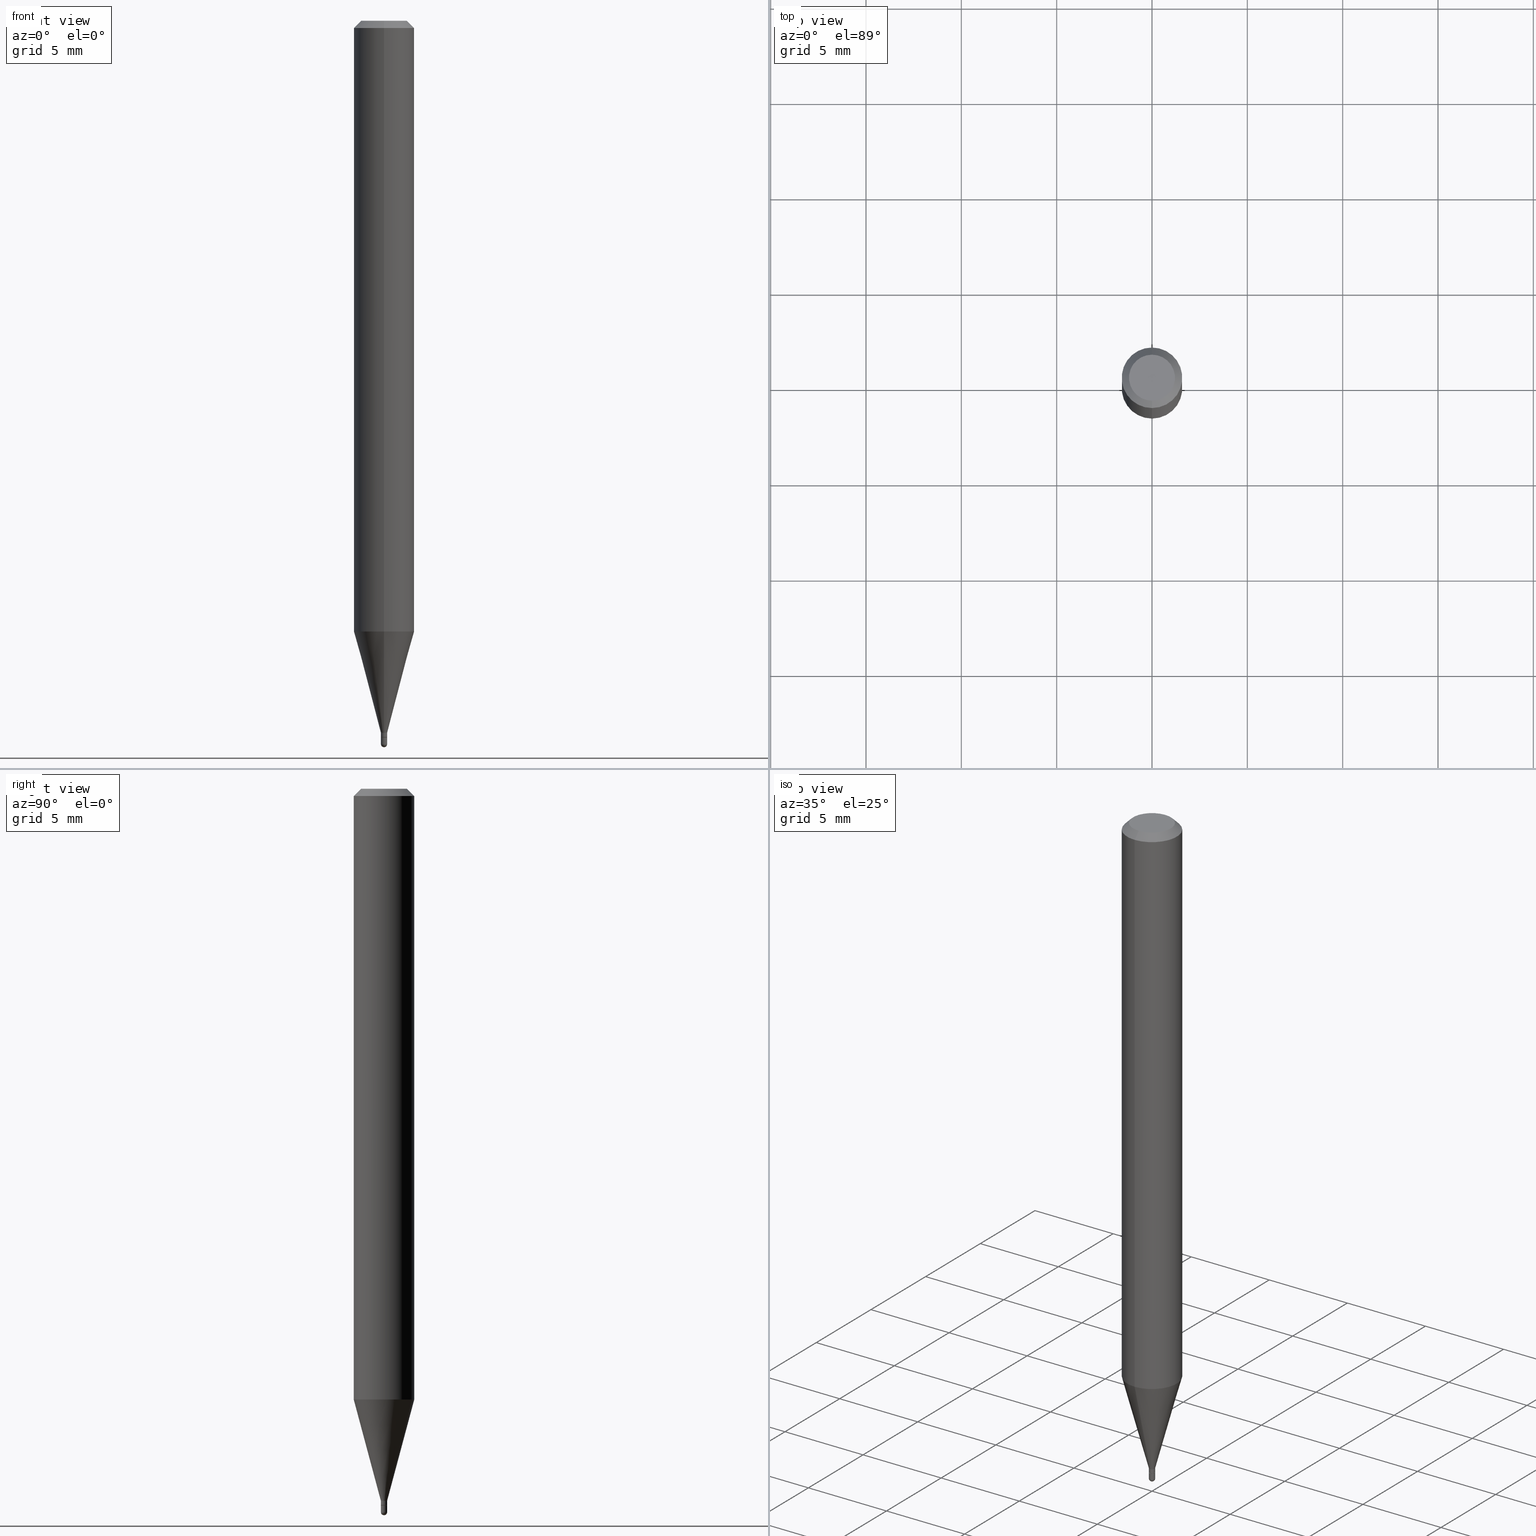
[diagram: canonical four-view strip — front | top / right | iso, engineering-drawing reading convention]
A machine part, canonical four-view strip (front | top / right | iso — engineering-drawing reading convention). The complete STEP part file that produces these views, byte-faithful:
ISO-10303-21;
HEADER;
FILE_DESCRIPTION (( 'STEP AP203' ),
    '1' );
FILE_NAME ('03074.STEP',
    '2024-03-08T18:06:24',
    ( '' ),
    ( '' ),
    'SwSTEP 2.0',
    'SolidWorks 2023',
    '' );
FILE_SCHEMA (( 'CONFIG_CONTROL_DESIGN' ));
ENDSEC;

DATA;
#1 = AXIS2_PLACEMENT_3D ( 'NONE', #377, #23, #67 ) ;
#2 = PRODUCT_DEFINITION_FORMATION_WITH_SPECIFIED_SOURCE ( 'ANY', '', #460, .NOT_KNOWN. ) ;
#3 = SECURITY_CLASSIFICATION_LEVEL ( 'unclassified' ) ;
#4 = CARTESIAN_POINT ( 'NONE',  ( -4.364351673553916201E-16, -0.06250000000000000000, 2.182182426191505568E-16 ) ) ;
#5 = CARTESIAN_POINT ( 'NONE',  ( 0.000000000000000000, 0.000000000000000000, 0.000000000000000000 ) ) ;
#6 = CARTESIAN_POINT ( 'NONE',  ( 3.652307662037501839E-29, -5.214527379562237841E-15, -1.493500000000000050 ) ) ;
#7 = EDGE_CURVE ( 'NONE', #459, #26, #87, .T. ) ;
#8 = FACE_OUTER_BOUND ( 'NONE', #211, .T. ) ;
#9 = EDGE_LOOP ( 'NONE', ( #18, #15, #296, #323, #359 ) ) ;
#10 = AXIS2_PLACEMENT_3D ( 'NONE', #219, #371, #468 ) ;
#11 = ORIENTED_EDGE ( 'NONE', *, *, #286, .T. ) ;
#12 = EDGE_LOOP ( 'NONE', ( #454, #379 ) ) ;
#13 = ORIENTED_EDGE ( 'NONE', *, *, #510, .F. ) ;
#14 = AXIS2_PLACEMENT_3D ( 'NONE', #266, #193, #142 ) ;
#15 = ORIENTED_EDGE ( 'NONE', *, *, #68, .T. ) ;
#16 = CARTESIAN_POINT ( 'NONE',  ( 3.652307662037501839E-29, -5.214527379562237841E-15, -1.493500000000000050 ) ) ;
#17 = DIRECTION ( 'NONE',  ( -6.982962677686265922E-15, -1.000000000000000000, 3.483106191921935554E-15 ) ) ;
#18 = ORIENTED_EDGE ( 'NONE', *, *, #122, .F. ) ;
#19 = ADVANCED_FACE ( 'NONE', ( #486 ), #70, .F. ) ;
#20 = CARTESIAN_POINT ( 'NONE',  ( 3.667369422145754585E-29, -5.238416038893887198E-15, -1.499999999999999778 ) ) ;
#21 = ORIENTED_EDGE ( 'NONE', *, *, #311, .T. ) ;
#22 = ORIENTED_EDGE ( 'NONE', *, *, #402, .T. ) ;
#23 = DIRECTION ( 'NONE',  ( -2.445461444003408996E-29, 3.491491881906408909E-15, 1.000000000000000000 ) ) ;
#24 = FACE_OUTER_BOUND ( 'NONE', #328, .T. ) ;
#25 = CIRCLE ( 'NONE', #105, 0.06250000000000000000 ) ;
#26 = VERTEX_POINT ( 'NONE', #230 ) ;
#27 = DIRECTION ( 'NONE',  ( 2.438088387897960049E-29, -3.491481338843145188E-15, -1.000000000000000000 ) ) ;
#28 = CARTESIAN_POINT ( 'NONE',  ( 2.451372438372677661E-16, 0.006499999999994789460, -1.469999999999999973 ) ) ;
#29 = CARTESIAN_POINT ( 'NONE',  ( 3.619293833154002365E-29, -5.167392381487854879E-15, -1.479999999999999982 ) ) ;
#30 = DIRECTION ( 'NONE',  ( 1.000000000000000000, -6.982962677686258822E-15, 0.000000000000000000 ) ) ;
#31 = FACE_OUTER_BOUND ( 'NONE', #366, .T. ) ;
#32 = APPROVAL_ROLE ( '' ) ;
#33 = DIRECTION ( 'NONE',  ( -6.982962677686265133E-15, -1.000000000000000000, 0.000000000000000000 ) ) ;
#34 = EDGE_CURVE ( 'NONE', #26, #459, #238, .T. ) ;
#35 = VECTOR ( 'NONE', #52, 39.37007874015748143 ) ;
#36 = COORDINATED_UNIVERSAL_TIME_OFFSET ( 5, 0, .BEHIND. ) ;
#37 = CARTESIAN_POINT ( 'NONE',  ( 0.000000000000000000, 0.000000000000000000, 0.000000000000000000 ) ) ;
#38 = LINE ( 'NONE', #110, #136 ) ;
#39 = COORDINATED_UNIVERSAL_TIME_OFFSET ( 5, 0, .BEHIND. ) ;
#40 = CARTESIAN_POINT ( 'NONE',  ( 3.651751803949534592E-29, -5.215323399981684118E-15, -1.493500000000000050 ) ) ;
#41 = AXIS2_PLACEMENT_3D ( 'NONE', #319, #444, #121 ) ;
#42 = CIRCLE ( 'NONE', #274, 0.006499999999999890414 ) ;
#43 = APPROVAL_DATE_TIME ( #511, #392 ) ;
#44 = DIRECTION ( 'NONE',  ( -2.445461444003408996E-29, 3.491491881906408909E-15, 1.000000000000000000 ) ) ;
#45 = ADVANCED_FACE ( 'NONE', ( #464 ), #227, .T. ) ;
#46 = CARTESIAN_POINT ( 'NONE',  ( 3.594828322685010882E-29, -5.132493066402420493E-15, -1.469999999999999973 ) ) ;
#47 = ORIENTED_EDGE ( 'NONE', *, *, #250, .T. ) ;
#48 = AXIS2_PLACEMENT_3D ( 'NONE', #190, #298, #30 ) ;
#49 = PRODUCT_DEFINITION ( 'UNKNOWN', '', #2, #497 ) ;
#50 = EDGE_LOOP ( 'NONE', ( #253, #188, #365, #55 ) ) ;
#51 = ORIENTED_EDGE ( 'NONE', *, *, #400, .F. ) ;
#52 = DIRECTION ( 'NONE',  ( -2.445461444003409276E-29, 3.491491881906408909E-15, 1.000000000000000000 ) ) ;
#53 = CIRCLE ( 'NONE', #478, 0.006499999999999998834 ) ;
#54 = VECTOR ( 'NONE', #95, 39.37007874015748143 ) ;
#55 = ORIENTED_EDGE ( 'NONE', *, *, #80, .F. ) ;
#56 = CARTESIAN_POINT ( 'NONE',  ( -5.856614666460352814E-45, 8.361744002769819647E-31, 2.394891434833919131E-16 ) ) ;
#57 = CARTESIAN_POINT ( 'NONE',  ( 0.006499999999999998834, -4.538925740496073214E-17, 3.169514904267357635E-31 ) ) ;
#58 = VERTEX_POINT ( 'NONE', #183 ) ;
#59 = CC_DESIGN_PERSON_AND_ORGANIZATION_ASSIGNMENT ( #245, #270, ( #218 ) ) ;
#60 = DIRECTION ( 'NONE',  ( -6.982962677686266711E-15, -1.000000000000000000, 3.491491881906409698E-15 ) ) ;
#61 = CARTESIAN_POINT ( 'NONE',  ( 3.083739486694608884E-29, -4.402789260943038280E-15, -1.261005154776143167 ) ) ;
#62 = ORIENTED_EDGE ( 'NONE', *, *, #502, .F. ) ;
#63 = CARTESIAN_POINT ( 'NONE',  ( 3.652307662037501839E-29, -5.214527379562237841E-15, -1.493500000000000050 ) ) ;
#64 = DIRECTION ( 'NONE',  ( -6.982962677686265922E-15, -1.000000000000000000, 4.370956789862821150E-15 ) ) ;
#65 = CONICAL_SURFACE ( 'NONE', #207, 0.005999999999999998390, 0.7853981633974739252 ) ;
#66 =( NAMED_UNIT ( * ) SI_UNIT ( $, .STERADIAN. ) SOLID_ANGLE_UNIT ( ) );
#67 = DIRECTION ( 'NONE',  ( -6.982962677686265922E-15, -1.000000000000000000, 3.491491881906408909E-15 ) ) ;
#68 = EDGE_CURVE ( 'NONE', #430, #491, #93, .T. ) ;
#69 = CARTESIAN_POINT ( 'NONE',  ( -4.538925740492423500E-17, -0.006500000000005055553, -1.469999999999999973 ) ) ;
#70 = PLANE ( 'NONE',  #294 ) ;
#71 = APPROVAL_ROLE ( '' ) ;
#72 = ADVANCED_FACE ( 'NONE', ( #340 ), #333, .T. ) ;
#73 = VECTOR ( 'NONE', #85, 39.37007874015748143 ) ;
#74 = COORDINATED_UNIVERSAL_TIME_OFFSET ( 5, 0, .BEHIND. ) ;
#75 = DIRECTION ( 'NONE',  ( -4.937700262164674260E-15, -0.7071067811865632269, 0.7071067811865319186 ) ) ;
#76 = MECHANICAL_CONTEXT ( 'NONE', #295, 'mechanical' ) ;
#77 = LINE ( 'NONE', #477, #119 ) ;
#78 = APPROVAL_DATE_TIME ( #474, #123 ) ;
#79 = DIRECTION ( 'NONE',  ( -2.445461444003409276E-29, 3.491491881906408909E-15, 1.000000000000000000 ) ) ;
#80 = EDGE_CURVE ( 'NONE', #271, #360, #166, .T. ) ;
#81 = DIMENSIONAL_EXPONENTS ( 1.000000000000000000, 0.000000000000000000, 0.000000000000000000, 0.000000000000000000, 0.000000000000000000, 0.000000000000000000, 0.000000000000000000 ) ;
#82 = VECTOR ( 'NONE', #316, 39.37007874015748143 ) ;
#83 = CIRCLE ( 'NONE', #14, 0.06250000000000000000 ) ;
#84 = FACE_OUTER_BOUND ( 'NONE', #50, .T. ) ;
#85 = DIRECTION ( 'NONE',  ( -4.851104656540964275E-15, -0.7071067811865500152, -0.7071067811865450192 ) ) ;
#86 = ORIENTED_EDGE ( 'NONE', *, *, #225, .T. ) ;
#87 = CIRCLE ( 'NONE', #380, 0.04749999999999999362 ) ;
#88 = ORIENTED_EDGE ( 'NONE', *, *, #282, .T. ) ;
#89 = DIRECTION ( 'NONE',  ( -2.445468806185136597E-29, 3.491481338843145583E-15, 1.000000000000000000 ) ) ;
#90 = VERTEX_POINT ( 'NONE', #234 ) ;
#91 = EDGE_CURVE ( 'NONE', #369, #430, #264, .T. ) ;
#92 = DIRECTION ( 'NONE',  ( 1.000000000000000000, -6.982962677686258822E-15, 0.000000000000000000 ) ) ;
#93 = CIRCLE ( 'NONE', #48, 0.006499999999999998834 ) ;
#94 =( GEOMETRIC_REPRESENTATION_CONTEXT ( 3 ) GLOBAL_UNCERTAINTY_ASSIGNED_CONTEXT ( ( #278 ) ) GLOBAL_UNIT_ASSIGNED_CONTEXT ( ( #335, #102, #66 ) ) REPRESENTATION_CONTEXT ( 'NONE', 'WORKASPACE' ) );
#95 = DIRECTION ( 'NONE',  ( 4.937700262164548042E-15, 0.7071067811865451302, -0.7071067811865499042 ) ) ;
#96 = CARTESIAN_POINT ( 'NONE',  ( -5.856614666460352814E-45, 8.361744002769819647E-31, 2.394891434833919131E-16 ) ) ;
#97 = CARTESIAN_POINT ( 'NONE',  ( 0.000000000000000000, 0.000000000000000000, 0.000000000000000000 ) ) ;
#98 = FACE_OUTER_BOUND ( 'NONE', #128, .T. ) ;
#99 = DIRECTION ( 'NONE',  ( -6.982962677686266711E-15, -1.000000000000000000, 3.491491881906409698E-15 ) ) ;
#100 = DIRECTION ( 'NONE',  ( -2.445461444003408996E-29, 3.491491881906408909E-15, 1.000000000000000000 ) ) ;
#101 = CC_DESIGN_PERSON_AND_ORGANIZATION_ASSIGNMENT ( #390, #309, ( #2 ) ) ;
#102 =( NAMED_UNIT ( * ) PLANE_ANGLE_UNIT ( ) SI_UNIT ( $, .RADIAN. ) );
#103 = DIRECTION ( 'NONE',  ( -2.445461444003408996E-29, 3.491491881906408909E-15, 1.000000000000000000 ) ) ;
#104 = AXIS2_PLACEMENT_3D ( 'NONE', #40, #204, #401 ) ;
#105 = AXIS2_PLACEMENT_3D ( 'NONE', #61, #103, #179 ) ;
#106 = PERSON_AND_ORGANIZATION ( #508, #172 ) ;
#107 = CARTESIAN_POINT ( 'NONE',  ( 4.440892098504216958E-17, 0.005999999999994831516, -1.479999999999999982 ) ) ;
#108 = PERSON_AND_ORGANIZATION ( #508, #172 ) ;
#109 = APPROVAL_STATUS ( 'not_yet_approved' ) ;
#110 = CARTESIAN_POINT ( 'NONE',  ( 4.440892098500625669E-16, 0.06250000000000000000, -2.182182426191505568E-16 ) ) ;
#111 = LINE ( 'NONE', #242, #73 ) ;
#112 = VECTOR ( 'NONE', #423, 39.37007874015748143 ) ;
#113 = CALENDAR_DATE ( 2024, 8, 3 ) ;
#114 = DIRECTION ( 'NONE',  ( 1.000000000000000000, -6.982962677686258822E-15, 0.000000000000000000 ) ) ;
#115 = DIRECTION ( 'NONE',  ( -2.445468806185136597E-29, 3.491481338843145583E-15, 1.000000000000000000 ) ) ;
#116 = ADVANCED_FACE ( 'NONE', ( #131 ), #452, .F. ) ;
#117 = LINE ( 'NONE', #473, #367 ) ;
#118 = EDGE_CURVE ( 'NONE', #432, #412, #38, .T. ) ;
#119 = VECTOR ( 'NONE', #210, 39.37007874015747433 ) ;
#120 = AXIS2_PLACEMENT_3D ( 'NONE', #252, #385, #256 ) ;
#121 = DIRECTION ( 'NONE',  ( 6.982962677686265922E-15, 1.000000000000000000, -3.483106191921935554E-15 ) ) ;
#122 = EDGE_CURVE ( 'NONE', #430, #58, #153, .T. ) ;
#123 = APPROVAL ( #353, 'UNSPECIFIED' ) ;
#124 = VERTEX_POINT ( 'NONE', #209 ) ;
#125 = AXIS2_PLACEMENT_3D ( 'NONE', #63, #89, #92 ) ;
#126 = ORIENTED_EDGE ( 'NONE', *, *, #350, .F. ) ;
#127 = EDGE_CURVE ( 'NONE', #362, #325, #354, .T. ) ;
#128 = EDGE_LOOP ( 'NONE', ( #292, #447, #168, #321 ) ) ;
#129 = VERTEX_POINT ( 'NONE', #237 ) ;
#130 = LINE ( 'NONE', #222, #35 ) ;
#131 = FACE_OUTER_BOUND ( 'NONE', #426, .T. ) ;
#132 = DIRECTION ( 'NONE',  ( -6.982962677686266711E-15, -1.000000000000000000, 0.000000000000000000 ) ) ;
#133 = ORIENTED_EDGE ( 'NONE', *, *, #258, .F. ) ;
#134 =( LENGTH_UNIT ( ) NAMED_UNIT ( * ) SI_UNIT ( $, .METRE. ) );
#135 = ORIENTED_EDGE ( 'NONE', *, *, #458, .F. ) ;
#136 = VECTOR ( 'NONE', #79, 39.37007874015748143 ) ;
#137 = ADVANCED_FACE ( 'NONE', ( #318 ), #476, .F. ) ;
#138 = APPROVAL_PERSON_ORGANIZATION ( #472, #392, #201 ) ;
#139 = CARTESIAN_POINT ( 'NONE',  ( 3.619282937125045740E-29, -5.167407985221484980E-15, -1.479999999999999982 ) ) ;
#140 = ORIENTED_EDGE ( 'NONE', *, *, #302, .F. ) ;
#141 = ORIENTED_EDGE ( 'NONE', *, *, #91, .T. ) ;
#142 = DIRECTION ( 'NONE',  ( -6.982962677686265922E-15, -1.000000000000000000, 3.483106191921935554E-15 ) ) ;
#143 = CC_DESIGN_PERSON_AND_ORGANIZATION_ASSIGNMENT ( #106, #151, ( #460 ) ) ;
#144 = CARTESIAN_POINT ( 'NONE',  ( 3.594828322685010882E-29, -5.132493066402420493E-15, -1.469999999999999973 ) ) ;
#145 = LINE ( 'NONE', #301, #54 ) ;
#146 = PERSON_AND_ORGANIZATION_ROLE ( 'creator' ) ;
#147 = DIRECTION ( 'NONE',  ( -2.445461444003408996E-29, 3.491491881906408909E-15, 1.000000000000000000 ) ) ;
#148 = LINE ( 'NONE', #57, #112 ) ;
#149 = AXIS2_PLACEMENT_3D ( 'NONE', #284, #496, #465 ) ;
#150 = CIRCLE ( 'NONE', #347, 0.006499999999999998834 ) ;
#151 = PERSON_AND_ORGANIZATION_ROLE ( 'design_owner' ) ;
#152 = EDGE_LOOP ( 'NONE', ( #51, #373, #374, #290 ) ) ;
#153 = LINE ( 'NONE', #394, #466 ) ;
#154 = DIRECTION ( 'NONE',  ( 1.000000000000000000, -6.982962677686258822E-15, 0.000000000000000000 ) ) ;
#155 = APPROVAL_DATE_TIME ( #194, #205 ) ;
#156 = CARTESIAN_POINT ( 'NONE',  ( 0.006499999999999998834, -5.236349137930007031E-15, -1.493500000000000050 ) ) ;
#157 = DIRECTION ( 'NONE',  ( -1.807323732225328562E-15, -0.2588190451025179639, 0.9659258262890689783 ) ) ;
#158 = SHAPE_DEFINITION_REPRESENTATION ( #437, #279 ) ;
#159 = DIRECTION ( 'NONE',  ( -2.445461444003408996E-29, 3.491491881906408909E-15, 1.000000000000000000 ) ) ;
#160 = AXIS2_PLACEMENT_3D ( 'NONE', #512, #159, #33 ) ;
#161 = AXIS2_PLACEMENT_3D ( 'NONE', #384, #263, #501 ) ;
#162 = CARTESIAN_POINT ( 'NONE',  ( 3.619282937125045740E-29, -5.167407985221484980E-15, -1.479999999999999982 ) ) ;
#163 = EDGE_CURVE ( 'NONE', #167, #271, #117, .T. ) ;
#164 = DIRECTION ( 'NONE',  ( 6.982962677686265922E-15, 1.000000000000000000, -3.491491881906408909E-15 ) ) ;
#165 = DIRECTION ( 'NONE',  ( -2.445461444003408996E-29, 3.491491881906408909E-15, 1.000000000000000000 ) ) ;
#166 = CIRCLE ( 'NONE', #493, 0.006499999999999922506 ) ;
#167 = VERTEX_POINT ( 'NONE', #202 ) ;
#168 = ORIENTED_EDGE ( 'NONE', *, *, #127, .T. ) ;
#169 = VERTEX_POINT ( 'NONE', #156 ) ;
#170 = ORIENTED_EDGE ( 'NONE', *, *, #311, .F. ) ;
#171 = CONICAL_SURFACE ( 'NONE', #149, 0.06250000000000000000, 0.7853981633974483900 ) ;
#172 = ORGANIZATION ( 'UNSPECIFIED', 'UNSPECIFIED', '' ) ;
#173 = ADVANCED_FACE ( 'NONE', ( #310 ), #475, .T. ) ;
#174 = ORIENTED_EDGE ( 'NONE', *, *, #449, .T. ) ;
#175 = DIRECTION ( 'NONE',  ( -2.445468806185136597E-29, 3.491481338843145583E-15, 1.000000000000000000 ) ) ;
#176 = CARTESIAN_POINT ( 'NONE',  ( 3.619282937125045740E-29, -5.167407985221484980E-15, -1.479999999999999982 ) ) ;
#177 = ORIENTED_EDGE ( 'NONE', *, *, #118, .T. ) ;
#178 = ORIENTED_EDGE ( 'NONE', *, *, #403, .T. ) ;
#179 = DIRECTION ( 'NONE',  ( -6.982962677686265922E-15, -1.000000000000000000, 4.370956789862821150E-15 ) ) ;
#180 = EDGE_LOOP ( 'NONE', ( #141, #343, #13, #215, #174 ) ) ;
#181 = CIRCLE ( 'NONE', #160, 0.006499999999999923374 ) ;
#182 = ADVANCED_FACE ( 'NONE', ( #200 ), #283, .T. ) ;
#183 = CARTESIAN_POINT ( 'NONE',  ( -0.006499999999999998834, -5.144774602700640201E-15, -1.479999999999999982 ) ) ;
#184 = AXIS2_PLACEMENT_3D ( 'NONE', #5, #387, #281 ) ;
#185 = ADVANCED_FACE ( 'NONE', ( #84 ), #244, .T. ) ;
#186 = CC_DESIGN_SECURITY_CLASSIFICATION ( #218, ( #2 ) ) ;
#187 = CARTESIAN_POINT ( 'NONE',  ( 3.651751803949534592E-29, -5.215323399981684118E-15, -1.493500000000000050 ) ) ;
#188 = ORIENTED_EDGE ( 'NONE', *, *, #224, .T. ) ;
#189 = DIRECTION ( 'NONE',  ( -6.982962677686266711E-15, -1.000000000000000000, 0.000000000000000000 ) ) ;
#190 = CARTESIAN_POINT ( 'NONE',  ( 3.652307662037501839E-29, -5.214527379562237841E-15, -1.493500000000000050 ) ) ;
#191 = DIRECTION ( 'NONE',  ( -6.982962677686266711E-15, -1.000000000000000000, 0.000000000000000000 ) ) ;
#192 = DIRECTION ( 'NONE',  ( -6.982962677686265133E-15, -1.000000000000000000, 0.000000000000000000 ) ) ;
#193 = DIRECTION ( 'NONE',  ( -2.445461444003408996E-29, 3.491491881906408909E-15, 1.000000000000000000 ) ) ;
#194 = DATE_AND_TIME ( #393, #443 ) ;
#195 = DIRECTION ( 'NONE',  ( -2.445461444003408996E-29, 3.491491881906408909E-15, 1.000000000000000000 ) ) ;
#196 = CARTESIAN_POINT ( 'NONE',  ( -4.538925740492423500E-17, -0.006500000000005055553, -1.469999999999999973 ) ) ;
#197 = AXIS2_PLACEMENT_3D ( 'NONE', #280, #44, #397 ) ;
#198 = AXIS2_PLACEMENT_3D ( 'NONE', #97, #341, #233 ) ;
#199 = CALENDAR_DATE ( 2024, 8, 3 ) ;
#200 = FACE_OUTER_BOUND ( 'NONE', #494, .T. ) ;
#201 = APPROVAL_ROLE ( '' ) ;
#202 = CARTESIAN_POINT ( 'NONE',  ( 4.618527782444199021E-17, 0.006499999999994737418, -1.479500000000000259 ) ) ;
#203 = PERSON_AND_ORGANIZATION ( #508, #172 ) ;
#204 = DIRECTION ( 'NONE',  ( 1.000000000000000000, -6.982962677686266711E-15, 4.883557194083113462E-29 ) ) ;
#205 = APPROVAL ( #434, 'UNSPECIFIED' ) ;
#206 = ADVANCED_FACE ( 'NONE', ( #246 ), #357, .T. ) ;
#207 = AXIS2_PLACEMENT_3D ( 'NONE', #504, #100, #331 ) ;
#208 = PERSON_AND_ORGANIZATION ( #508, #172 ) ;
#209 = CARTESIAN_POINT ( 'NONE',  ( -4.189777606608139426E-17, -0.006000000000005166131, -1.479999999999999982 ) ) ;
#210 = DIRECTION ( 'NONE',  ( 1.839019923739599526E-15, 0.2588190451025248473, 0.9659258262890673130 ) ) ;
#211 = EDGE_LOOP ( 'NONE', ( #135, #420, #178, #260 ) ) ;
#212 = LOCAL_TIME ( 13, 6, 24.00000000000000000, #351 ) ;
#213 = ORIENTED_EDGE ( 'NONE', *, *, #258, .T. ) ;
#214 = ORIENTED_EDGE ( 'NONE', *, *, #510, .T. ) ;
#215 = ORIENTED_EDGE ( 'NONE', *, *, #288, .F. ) ;
#216 = EDGE_LOOP ( 'NONE', ( #214, #86 ) ) ;
#217 = EDGE_CURVE ( 'NONE', #124, #129, #435, .T. ) ;
#218 = SECURITY_CLASSIFICATION ( '', '', #3 ) ;
#219 = CARTESIAN_POINT ( 'NONE',  ( 0.000000000000000000, 0.000000000000000000, 0.000000000000000000 ) ) ;
#220 = DIRECTION ( 'NONE',  ( -2.445461444003408996E-29, 3.491491881906408909E-15, 1.000000000000000000 ) ) ;
#221 = EDGE_LOOP ( 'NONE', ( #213, #47, #383, #451 ) ) ;
#222 = CARTESIAN_POINT ( 'NONE',  ( -4.538925740496018980E-17, -0.006499999999999923374, 2.269469723239139053E-17 ) ) ;
#223 = CARTESIAN_POINT ( 'NONE',  ( 4.440892098500932831E-16, 0.06249999999999557992, -1.261005154776143389 ) ) ;
#224 = EDGE_CURVE ( 'NONE', #167, #129, #181, .T. ) ;
#225 = EDGE_CURVE ( 'NONE', #58, #90, #53, .T. ) ;
#226 = CARTESIAN_POINT ( 'NONE',  ( 3.840629472727447874E-16, 0.04749999999999999362, 7.364327909283752044E-17 ) ) ;
#227 = CYLINDRICAL_SURFACE ( 'NONE', #1, 0.06250000000000000000 ) ;
#228 = CARTESIAN_POINT ( 'NONE',  ( 3.618060206403044053E-29, -5.165662239280532821E-15, -1.479500000000000259 ) ) ;
#229 = CYLINDRICAL_SURFACE ( 'NONE', #120, 0.06250000000000000000 ) ;
#230 = CARTESIAN_POINT ( 'NONE',  ( -3.773273898774340269E-16, -0.04749999999999999362, 4.053350078739463550E-16 ) ) ;
#231 = AXIS2_PLACEMENT_3D ( 'NONE', #29, #376, #339 ) ;
#232 = CARTESIAN_POINT ( 'NONE',  ( -4.364351673553912750E-16, -0.06250000000000005551, -0.01499999999999954321 ) ) ;
#233 = DIRECTION ( 'NONE',  ( -6.982962677686265133E-15, -1.000000000000000000, 3.491491881906408909E-15 ) ) ;
#234 = CARTESIAN_POINT ( 'NONE',  ( 0.006499999999999998834, -5.212781638892815549E-15, -1.479999999999999982 ) ) ;
#235 = DIRECTION ( 'NONE',  ( -2.445468806185136597E-29, 3.491481338843145583E-15, 1.000000000000000000 ) ) ;
#236 = COORDINATED_UNIVERSAL_TIME_OFFSET ( 5, 0, .BEHIND. ) ;
#237 = CARTESIAN_POINT ( 'NONE',  ( -4.538925740492416104E-17, -0.006500000000005109330, -1.479500000000000259 ) ) ;
#238 = CIRCLE ( 'NONE', #505, 0.04749999999999999362 ) ;
#239 = APPROVAL_PERSON_ORGANIZATION ( #208, #123, #71 ) ;
#240 = PERSON_AND_ORGANIZATION_ROLE ( 'creator' ) ;
#241 = DIRECTION ( 'NONE',  ( -2.445461444003409276E-29, 3.491491881906408909E-15, 1.000000000000000000 ) ) ;
#242 = CARTESIAN_POINT ( 'NONE',  ( -4.287811248607203282E-16, -0.06250000000000005551, -0.01499999999999954321 ) ) ;
#243 = ADVANCED_FACE ( 'NONE', ( #277 ), #395, .T. ) ;
#244 = CYLINDRICAL_SURFACE ( 'NONE', #197, 0.006499999999999923374 ) ;
#245 = PERSON_AND_ORGANIZATION ( #508, #172 ) ;
#246 = FACE_OUTER_BOUND ( 'NONE', #9, .T. ) ;
#247 = CIRCLE ( 'NONE', #442, 0.005999999999999998390 ) ;
#248 = APPROVAL_PERSON_ORGANIZATION ( #108, #205, #32 ) ;
#249 = FACE_OUTER_BOUND ( 'NONE', #364, .T. ) ;
#250 = EDGE_CURVE ( 'NONE', #271, #432, #77, .T. ) ;
#251 = ORIENTED_EDGE ( 'NONE', *, *, #250, .F. ) ;
#252 = CARTESIAN_POINT ( 'NONE',  ( 0.000000000000000000, 0.000000000000000000, 0.000000000000000000 ) ) ;
#253 = ORIENTED_EDGE ( 'NONE', *, *, #163, .F. ) ;
#254 = AXIS2_PLACEMENT_3D ( 'NONE', #439, #272, #164 ) ;
#255 = AXIS2_PLACEMENT_3D ( 'NONE', #421, #462, #492 ) ;
#256 = DIRECTION ( 'NONE',  ( -6.982962677686265922E-15, -1.000000000000000000, 3.491491881906408909E-15 ) ) ;
#257 = FACE_OUTER_BOUND ( 'NONE', #480, .T. ) ;
#258 = EDGE_CURVE ( 'NONE', #360, #271, #428, .T. ) ;
#259 = ADVANCED_FACE ( 'NONE', ( #8 ), #481, .T. ) ;
#260 = ORIENTED_EDGE ( 'NONE', *, *, #413, .T. ) ;
#261 = DIRECTION ( 'NONE',  ( -2.445461444003408996E-29, 3.491491881906408909E-15, 1.000000000000000000 ) ) ;
#262 = DIRECTION ( 'NONE',  ( 5.024295867788190974E-15, 0.7071067811865681119, 0.7071067811865270336 ) ) ;
#263 = DIRECTION ( 'NONE',  ( 1.000000000000000000, -7.105427357601001070E-15, 4.926315508542082329E-29 ) ) ;
#264 = CIRCLE ( 'NONE', #361, 0.006499999999999998834 ) ;
#265 = CARTESIAN_POINT ( 'NONE',  ( 4.538925740499691497E-17, 0.006499999999994831960, -1.479999999999999982 ) ) ;
#266 = CARTESIAN_POINT ( 'NONE',  ( 3.668192166005054832E-31, -5.237237822859530139E-17, -0.01499999999999976179 ) ) ;
#267 = ADVANCED_FACE ( 'NONE', ( #249 ), #171, .T. ) ;
#268 = CARTESIAN_POINT ( 'NONE',  ( 3.594828322685010882E-29, -5.132493066402420493E-15, -1.469999999999999973 ) ) ;
#269 = CARTESIAN_POINT ( 'NONE',  ( 4.440892098500935790E-16, 0.06249999999999995143, -0.01499999999999997863 ) ) ;
#270 = PERSON_AND_ORGANIZATION_ROLE ( 'classification_officer' ) ;
#271 = VERTEX_POINT ( 'NONE', #28 ) ;
#272 = DIRECTION ( 'NONE',  ( 2.445461444003408716E-29, -3.491491881906408909E-15, -1.000000000000000000 ) ) ;
#273 = DIRECTION ( 'NONE',  ( -6.982962677686265133E-15, -1.000000000000000000, 0.000000000000000000 ) ) ;
#274 = AXIS2_PLACEMENT_3D ( 'NONE', #490, #461, #189 ) ;
#275 = CC_DESIGN_PERSON_AND_ORGANIZATION_ASSIGNMENT ( #509, #146, ( #2 ) ) ;
#276 = DATE_AND_TIME ( #470, #334 ) ;
#277 = FACE_OUTER_BOUND ( 'NONE', #152, .T. ) ;
#278 = UNCERTAINTY_MEASURE_WITH_UNIT (LENGTH_MEASURE( 1.000000000000000082E-05 ), #335, 'distance_accuracy_value', 'NONE');
#279 = ADVANCED_BREP_SHAPE_REPRESENTATION ( '03074', ( #317, #313, #10 ), #94 ) ;
#280 = CARTESIAN_POINT ( 'NONE',  ( 0.000000000000000000, 0.000000000000000000, 0.000000000000000000 ) ) ;
#281 = DIRECTION ( 'NONE',  ( 1.000000000000000000, -6.982962677686267499E-15, 4.876176775795935793E-29 ) ) ;
#282 = EDGE_CURVE ( 'NONE', #124, #410, #247, .T. ) ;
#283 = CONICAL_SURFACE ( 'NONE', #416, 0.006499999999999922506, 0.2617993877991501295 ) ;
#284 = CARTESIAN_POINT ( 'NONE',  ( 3.668192166005054832E-31, -5.237237822859530139E-17, -0.01499999999999976179 ) ) ;
#285 = AXIS2_PLACEMENT_3D ( 'NONE', #162, #346, #349 ) ;
#286 = EDGE_CURVE ( 'NONE', #410, #124, #345, .T. ) ;
#287 = CIRCLE ( 'NONE', #305, 0.06250000000000000000 ) ;
#288 = EDGE_CURVE ( 'NONE', #169, #90, #148, .T. ) ;
#289 = EDGE_LOOP ( 'NONE', ( #22, #177, #170, #411 ) ) ;
#290 = ORIENTED_EDGE ( 'NONE', *, *, #91, .F. ) ;
#291 = ORIENTED_EDGE ( 'NONE', *, *, #448, .T. ) ;
#292 = ORIENTED_EDGE ( 'NONE', *, *, #118, .F. ) ;
#293 = DIRECTION ( 'NONE',  ( -6.982962677686266711E-15, -1.000000000000000000, 0.000000000000000000 ) ) ;
#294 = AXIS2_PLACEMENT_3D ( 'NONE', #265, #27, #422 ) ;
#295 = APPLICATION_CONTEXT ( 'configuration controlled 3d designs of mechanical parts and assemblies' ) ;
#296 = ORIENTED_EDGE ( 'NONE', *, *, #483, .T. ) ;
#297 = DIRECTION ( 'NONE',  ( -2.445461444003408996E-29, 3.491491881906408909E-15, 1.000000000000000000 ) ) ;
#298 = DIRECTION ( 'NONE',  ( -2.445468806185136597E-29, 3.491481338843145583E-15, 1.000000000000000000 ) ) ;
#299 = DIRECTION ( 'NONE',  ( 1.000000000000000000, -6.982962677686266711E-15, 4.883557194083113462E-29 ) ) ;
#300 = DIRECTION ( 'NONE',  ( -2.445461444003408996E-29, 3.491491881906408909E-15, 1.000000000000000000 ) ) ;
#301 = CARTESIAN_POINT ( 'NONE',  ( 4.364351673553919652E-16, 0.06249999999999995143, -0.01499999999999997863 ) ) ;
#302 = EDGE_CURVE ( 'NONE', #432, #362, #25, .T. ) ;
#303 = CALENDAR_DATE ( 2024, 8, 3 ) ;
#304 = DIRECTION ( 'NONE',  ( -2.445461444003408996E-29, 3.491491881906408909E-15, 1.000000000000000000 ) ) ;
#305 = AXIS2_PLACEMENT_3D ( 'NONE', #433, #220, #17 ) ;
#306 = SPHERICAL_SURFACE ( 'NONE', #391, 0.006499999999999890414 ) ;
#307 = DATE_TIME_ROLE ( 'creation_date' ) ;
#308 = CARTESIAN_POINT ( 'NONE',  ( -4.189777606608139426E-17, -0.006000000000005166131, -1.479999999999999982 ) ) ;
#309 = PERSON_AND_ORGANIZATION_ROLE ( 'design_supplier' ) ;
#310 = FACE_OUTER_BOUND ( 'NONE', #180, .T. ) ;
#311 = EDGE_CURVE ( 'NONE', #325, #412, #83, .T. ) ;
#312 = CARTESIAN_POINT ( 'NONE',  ( 3.619293833154002365E-29, -5.167392381487854879E-15, -1.479999999999999982 ) ) ;
#313 = MANIFOLD_SOLID_BREP ( 'Body-Move/Copy2[2]', #320 ) ;
#314 = CLOSED_SHELL ( 'NONE', ( #173, #368, #19, #243, #206 ) ) ;
#315 = CIRCLE ( 'NONE', #479, 0.06250000000000000000 ) ;
#316 = DIRECTION ( 'NONE',  ( -2.445461444003409276E-29, 3.491491881906408909E-15, 1.000000000000000000 ) ) ;
#317 = MANIFOLD_SOLID_BREP ( 'Body-Move/Copy2[1]', #314 ) ;
#318 = FACE_OUTER_BOUND ( 'NONE', #12, .T. ) ;
#319 = CARTESIAN_POINT ( 'NONE',  ( 3.668192166005054832E-31, -5.237237822859530139E-17, -0.01499999999999976179 ) ) ;
#320 = CLOSED_SHELL ( 'NONE', ( #342, #425, #267, #45, #72, #182, #489, #259, #116, #137, #388, #185 ) ) ;
#321 = ORIENTED_EDGE ( 'NONE', *, *, #413, .F. ) ;
#322 = ORIENTED_EDGE ( 'NONE', *, *, #217, .F. ) ;
#323 = ORIENTED_EDGE ( 'NONE', *, *, #288, .T. ) ;
#324 = ORIENTED_EDGE ( 'NONE', *, *, #34, .F. ) ;
#325 = VERTEX_POINT ( 'NONE', #232 ) ;
#326 = DIRECTION ( 'NONE',  ( 1.000000000000000000, -6.982962677686258822E-15, 0.000000000000000000 ) ) ;
#327 = DIRECTION ( 'NONE',  ( -2.445461444003408996E-29, 3.491491881906408909E-15, 1.000000000000000000 ) ) ;
#328 = EDGE_LOOP ( 'NONE', ( #62, #450, #414, #408 ) ) ;
#329 = ORIENTED_EDGE ( 'NONE', *, *, #34, .T. ) ;
#330 = CC_DESIGN_DATE_AND_TIME_ASSIGNMENT ( #396, #348, ( #218 ) ) ;
#331 = DIRECTION ( 'NONE',  ( -6.982962677686266711E-15, -1.000000000000000000, 0.000000000000000000 ) ) ;
#332 = ORIENTED_EDGE ( 'NONE', *, *, #7, .T. ) ;
#333 = CONICAL_SURFACE ( 'NONE', #389, 0.006499999999999922506, 0.2617993877991501295 ) ;
#334 = LOCAL_TIME ( 13, 6, 24.00000000000000000, #74 ) ;
#335 =( CONVERSION_BASED_UNIT ( 'INCH', #499 ) LENGTH_UNIT ( ) NAMED_UNIT ( #81 ) );
#336 = ORIENTED_EDGE ( 'NONE', *, *, #403, .F. ) ;
#337 = CARTESIAN_POINT ( 'NONE',  ( -4.364351673553608545E-16, -0.06250000000000439926, -1.261005154776142723 ) ) ;
#338 = ORIENTED_EDGE ( 'NONE', *, *, #356, .T. ) ;
#339 = DIRECTION ( 'NONE',  ( 1.000000000000000000, -6.982962677686258822E-15, 0.000000000000000000 ) ) ;
#340 = FACE_OUTER_BOUND ( 'NONE', #221, .T. ) ;
#341 = DIRECTION ( 'NONE',  ( -2.445461444003408996E-29, 3.491491881906408909E-15, 1.000000000000000000 ) ) ;
#342 = ADVANCED_FACE ( 'NONE', ( #431 ), #457, .T. ) ;
#343 = ORIENTED_EDGE ( 'NONE', *, *, #122, .T. ) ;
#344 = DIRECTION ( 'NONE',  ( -6.982962677686265133E-15, -1.000000000000000000, 0.000000000000000000 ) ) ;
#345 = CIRCLE ( 'NONE', #255, 0.005999999999999998390 ) ;
#346 = DIRECTION ( 'NONE',  ( -2.445461444003408716E-29, 3.491491881906408909E-15, 1.000000000000000000 ) ) ;
#347 = AXIS2_PLACEMENT_3D ( 'NONE', #6, #235, #154 ) ;
#348 = DATE_TIME_ROLE ( 'classification_date' ) ;
#349 = DIRECTION ( 'NONE',  ( -6.982962677686265922E-15, -1.000000000000000000, 3.491491881906408909E-15 ) ) ;
#350 = EDGE_CURVE ( 'NONE', #410, #167, #487, .T. ) ;
#351 = COORDINATED_UNIVERSAL_TIME_OFFSET ( 5, 0, .BEHIND. ) ;
#352 = CARTESIAN_POINT ( 'NONE',  ( 3.594828322685010882E-29, -5.132493066402420493E-15, -1.469999999999999973 ) ) ;
#353 = APPROVAL_STATUS ( 'not_yet_approved' ) ;
#354 = LINE ( 'NONE', #4, #82 ) ;
#355 = CIRCLE ( 'NONE', #125, 0.006499999999999998834 ) ;
#356 = EDGE_CURVE ( 'NONE', #129, #167, #495, .T. ) ;
#357 = CYLINDRICAL_SURFACE ( 'NONE', #184, 0.006499999999999998834 ) ;
#358 = DIRECTION ( 'NONE',  ( -6.982962677686265133E-15, -1.000000000000000000, 0.000000000000000000 ) ) ;
#359 = ORIENTED_EDGE ( 'NONE', *, *, #225, .F. ) ;
#360 = VERTEX_POINT ( 'NONE', #69 ) ;
#361 = AXIS2_PLACEMENT_3D ( 'NONE', #16, #175, #326 ) ;
#362 = VERTEX_POINT ( 'NONE', #337 ) ;
#363 = CC_DESIGN_DATE_AND_TIME_ASSIGNMENT ( #276, #307, ( #49 ) ) ;
#364 = EDGE_LOOP ( 'NONE', ( #324, #463, #21, #336 ) ) ;
#365 = ORIENTED_EDGE ( 'NONE', *, *, #485, .T. ) ;
#366 = EDGE_LOOP ( 'NONE', ( #126, #11, #484, #404 ) ) ;
#367 = VECTOR ( 'NONE', #241, 39.37007874015748143 ) ;
#368 = ADVANCED_FACE ( 'NONE', ( #24 ), #306, .T. ) ;
#369 = VERTEX_POINT ( 'NONE', #386 ) ;
#370 = VECTOR ( 'NONE', #262, 39.37007874015748143 ) ;
#371 = DIRECTION ( 'NONE',  ( 0.000000000000000000, 0.000000000000000000, 1.000000000000000000 ) ) ;
#372 = CARTESIAN_POINT ( 'NONE',  ( 4.263256414564218254E-17, 0.005999999999994831516, -1.479999999999999982 ) ) ;
#373 = ORIENTED_EDGE ( 'NONE', *, *, #502, .T. ) ;
#374 = ORIENTED_EDGE ( 'NONE', *, *, #68, .F. ) ;
#375 = LINE ( 'NONE', #196, #455 ) ;
#376 = DIRECTION ( 'NONE',  ( -2.445468806185136597E-29, 3.491481338843145583E-15, 1.000000000000000000 ) ) ;
#377 = CARTESIAN_POINT ( 'NONE',  ( 0.000000000000000000, 0.000000000000000000, 0.000000000000000000 ) ) ;
#378 = DIRECTION ( 'NONE',  ( -2.445461444003408996E-29, 3.491491881906408909E-15, 1.000000000000000000 ) ) ;
#379 = ORIENTED_EDGE ( 'NONE', *, *, #286, .F. ) ;
#380 = AXIS2_PLACEMENT_3D ( 'NONE', #96, #261, #60 ) ;
#381 = AXIS2_PLACEMENT_3D ( 'NONE', #228, #378, #344 ) ;
#382 = CC_DESIGN_PERSON_AND_ORGANIZATION_ASSIGNMENT ( #203, #240, ( #49 ) ) ;
#383 = ORIENTED_EDGE ( 'NONE', *, *, #402, .F. ) ;
#384 = CARTESIAN_POINT ( 'NONE',  ( 3.651751803949534592E-29, -5.215323399981684118E-15, -1.493500000000000050 ) ) ;
#385 = DIRECTION ( 'NONE',  ( -2.445461444003408996E-29, 3.491491881906408909E-15, 1.000000000000000000 ) ) ;
#386 = CARTESIAN_POINT ( 'NONE',  ( 4.618527782444263733E-17, 0.006499999999994729612, -1.493500000000000050 ) ) ;
#387 = DIRECTION ( 'NONE',  ( -2.445468806185136597E-29, 3.491481338843145583E-15, 1.000000000000000000 ) ) ;
#388 = ADVANCED_FACE ( 'NONE', ( #31 ), #65, .T. ) ;
#389 = AXIS2_PLACEMENT_3D ( 'NONE', #144, #300, #192 ) ;
#390 = PERSON_AND_ORGANIZATION ( #508, #172 ) ;
#391 = AXIS2_PLACEMENT_3D ( 'NONE', #187, #299, #132 ) ;
#392 = APPROVAL ( #109, 'UNSPECIFIED' ) ;
#393 = CALENDAR_DATE ( 2024, 8, 3 ) ;
#394 = CARTESIAN_POINT ( 'NONE',  ( -0.006499999999999998834, 4.618527782440650380E-17, -3.197307808665688464E-31 ) ) ;
#395 = SPHERICAL_SURFACE ( 'NONE', #104, 0.006499999999999890414 ) ;
#396 = DATE_AND_TIME ( #199, #506 ) ;
#397 = DIRECTION ( 'NONE',  ( -6.982962677686265133E-15, -1.000000000000000000, 3.491491881906408909E-15 ) ) ;
#398 = AXIS2_PLACEMENT_3D ( 'NONE', #46, #165, #358 ) ;
#399 = CONICAL_SURFACE ( 'NONE', #482, 0.005999999999999998390, 0.7853981633974739252 ) ;
#400 = EDGE_CURVE ( 'NONE', #500, #369, #429, .T. ) ;
#401 = DIRECTION ( 'NONE',  ( -6.982962677686266711E-15, -1.000000000000000000, 0.000000000000000000 ) ) ;
#402 = EDGE_CURVE ( 'NONE', #362, #432, #315, .T. ) ;
#403 = EDGE_CURVE ( 'NONE', #459, #412, #145, .T. ) ;
#404 = ORIENTED_EDGE ( 'NONE', *, *, #224, .F. ) ;
#405 = VECTOR ( 'NONE', #75, 39.37007874015748143 ) ;
#406 = AXIS2_PLACEMENT_3D ( 'NONE', #37, #115, #507 ) ;
#407 = CC_DESIGN_APPROVAL ( #205, ( #2 ) ) ;
#408 = ORIENTED_EDGE ( 'NONE', *, *, #483, .F. ) ;
#409 = PRODUCT_RELATED_PRODUCT_CATEGORY ( 'detail', '', ( #460 ) ) ;
#410 = VERTEX_POINT ( 'NONE', #107 ) ;
#411 = ORIENTED_EDGE ( 'NONE', *, *, #127, .F. ) ;
#412 = VERTEX_POINT ( 'NONE', #269 ) ;
#413 = EDGE_CURVE ( 'NONE', #412, #325, #287, .T. ) ;
#414 = ORIENTED_EDGE ( 'NONE', *, *, #449, .F. ) ;
#415 = APPLICATION_PROTOCOL_DEFINITION ( 'international standard', 'config_control_design', 1994, #295 ) ;
#416 = AXIS2_PLACEMENT_3D ( 'NONE', #352, #195, #273 ) ;
#417 = ORIENTED_EDGE ( 'NONE', *, *, #485, .F. ) ;
#418 = CC_DESIGN_APPROVAL ( #123, ( #49 ) ) ;
#419 = CARTESIAN_POINT ( 'NONE',  ( -4.538925740492382824E-17, -0.006500000000005159637, -1.493500000000000050 ) ) ;
#420 = ORIENTED_EDGE ( 'NONE', *, *, #7, .F. ) ;
#421 = CARTESIAN_POINT ( 'NONE',  ( 3.619282937125045740E-29, -5.167407985221484980E-15, -1.479999999999999982 ) ) ;
#422 = DIRECTION ( 'NONE',  ( -1.000000000000000000, 6.982962677686265922E-15, -4.876176775795935793E-29 ) ) ;
#423 = DIRECTION ( 'NONE',  ( -2.445468806185136877E-29, 3.491481338843145188E-15, 1.000000000000000000 ) ) ;
#424 = ORIENTED_EDGE ( 'NONE', *, *, #350, .T. ) ;
#425 = ADVANCED_FACE ( 'NONE', ( #257 ), #399, .T. ) ;
#426 = EDGE_LOOP ( 'NONE', ( #332, #329 ) ) ;
#427 = DIRECTION ( 'NONE',  ( -2.445461444003408996E-29, 3.491491881906408909E-15, 1.000000000000000000 ) ) ;
#428 = CIRCLE ( 'NONE', #398, 0.006499999999999922506 ) ;
#429 = CIRCLE ( 'NONE', #161, 0.006499999999999890414 ) ;
#430 = VERTEX_POINT ( 'NONE', #453 ) ;
#431 = FACE_OUTER_BOUND ( 'NONE', #488, .T. ) ;
#432 = VERTEX_POINT ( 'NONE', #223 ) ;
#433 = CARTESIAN_POINT ( 'NONE',  ( 3.668192166005054832E-31, -5.237237822859530139E-17, -0.01499999999999976179 ) ) ;
#434 = APPROVAL_STATUS ( 'not_yet_approved' ) ;
#435 = LINE ( 'NONE', #308, #405 ) ;
#436 = CC_DESIGN_APPROVAL ( #392, ( #218 ) ) ;
#437 = PRODUCT_DEFINITION_SHAPE ( 'NONE', 'NONE',  #49 ) ;
#438 = APPLICATION_PROTOCOL_DEFINITION ( 'international standard', 'config_control_design', 1994, #440 ) ;
#439 = CARTESIAN_POINT ( 'NONE',  ( 3.316907271900976096E-16, 0.04749999999999999362, -4.610129264885844225E-17 ) ) ;
#440 = APPLICATION_CONTEXT ( 'configuration controlled 3d designs of mechanical parts and assemblies' ) ;
#441 = DIRECTION ( 'NONE',  ( -2.445468806185136877E-29, 3.491481338843145188E-15, 1.000000000000000000 ) ) ;
#442 = AXIS2_PLACEMENT_3D ( 'NONE', #139, #297, #191 ) ;
#443 = LOCAL_TIME ( 13, 6, 24.00000000000000000, #39 ) ;
#444 = DIRECTION ( 'NONE',  ( 2.445461444003408996E-29, -3.491491881906408909E-15, -1.000000000000000000 ) ) ;
#445 = ORIENTED_EDGE ( 'NONE', *, *, #163, .T. ) ;
#446 = CIRCLE ( 'NONE', #231, 0.006499999999999998834 ) ;
#447 = ORIENTED_EDGE ( 'NONE', *, *, #302, .T. ) ;
#448 = EDGE_CURVE ( 'NONE', #360, #362, #375, .T. ) ;
#449 = EDGE_CURVE ( 'NONE', #169, #369, #150, .T. ) ;
#450 = ORIENTED_EDGE ( 'NONE', *, *, #400, .T. ) ;
#451 = ORIENTED_EDGE ( 'NONE', *, *, #448, .F. ) ;
#452 = PLANE ( 'NONE',  #254 ) ;
#453 = CARTESIAN_POINT ( 'NONE',  ( -0.006499999999999998834, -5.144774602700640201E-15, -1.493500000000000050 ) ) ;
#454 = ORIENTED_EDGE ( 'NONE', *, *, #282, .F. ) ;
#455 = VECTOR ( 'NONE', #157, 39.37007874015749564 ) ;
#456 = ORIENTED_EDGE ( 'NONE', *, *, #356, .F. ) ;
#457 = CYLINDRICAL_SURFACE ( 'NONE', #198, 0.006499999999999923374 ) ;
#458 = EDGE_CURVE ( 'NONE', #26, #325, #111, .T. ) ;
#459 = VERTEX_POINT ( 'NONE', #226 ) ;
#460 = PRODUCT ( '03074', '03074', '', ( #76 ) ) ;
#461 = DIRECTION ( 'NONE',  ( -1.000000000000000000, 6.982962677686265922E-15, -4.883557194083112340E-29 ) ) ;
#462 = DIRECTION ( 'NONE',  ( -2.445461444003408996E-29, 3.491491881906408909E-15, 1.000000000000000000 ) ) ;
#463 = ORIENTED_EDGE ( 'NONE', *, *, #458, .T. ) ;
#464 = FACE_OUTER_BOUND ( 'NONE', #289, .T. ) ;
#465 = DIRECTION ( 'NONE',  ( 6.982962677686265922E-15, 1.000000000000000000, -3.483106191921935554E-15 ) ) ;
#466 = VECTOR ( 'NONE', #441, 39.37007874015748143 ) ;
#467 = LOCAL_TIME ( 13, 6, 24.00000000000000000, #236 ) ;
#468 = DIRECTION ( 'NONE',  ( 1.000000000000000000, 0.000000000000000000, 0.000000000000000000 ) ) ;
#469 = CARTESIAN_POINT ( 'NONE',  ( 3.083739486694608884E-29, -4.402789260943038280E-15, -1.261005154776143167 ) ) ;
#470 = CALENDAR_DATE ( 2024, 8, 3 ) ;
#471 = DIRECTION ( 'NONE',  ( -2.445468806185136597E-29, 3.491481338843145583E-15, 1.000000000000000000 ) ) ;
#472 = PERSON_AND_ORGANIZATION ( #508, #172 ) ;
#473 = CARTESIAN_POINT ( 'NONE',  ( 4.618527782440596146E-17, 0.006499999999999923374, -2.269469723239139053E-17 ) ) ;
#474 = DATE_AND_TIME ( #113, #467 ) ;
#475 = CYLINDRICAL_SURFACE ( 'NONE', #406, 0.006499999999999998834 ) ;
#476 = PLANE ( 'NONE',  #285 ) ;
#477 = CARTESIAN_POINT ( 'NONE',  ( 4.618527782444190393E-17, 0.006499999999994789460, -1.469999999999999973 ) ) ;
#478 = AXIS2_PLACEMENT_3D ( 'NONE', #312, #471, #114 ) ;
#479 = AXIS2_PLACEMENT_3D ( 'NONE', #469, #427, #64 ) ;
#480 = EDGE_LOOP ( 'NONE', ( #88, #424, #456, #322 ) ) ;
#481 = CONICAL_SURFACE ( 'NONE', #41, 0.06250000000000000000, 0.7853981633974483900 ) ;
#482 = AXIS2_PLACEMENT_3D ( 'NONE', #176, #327, #293 ) ;
#483 = EDGE_CURVE ( 'NONE', #491, #169, #355, .T. ) ;
#484 = ORIENTED_EDGE ( 'NONE', *, *, #217, .T. ) ;
#485 = EDGE_CURVE ( 'NONE', #129, #360, #130, .T. ) ;
#486 = FACE_OUTER_BOUND ( 'NONE', #216, .T. ) ;
#487 = LINE ( 'NONE', #372, #370 ) ;
#488 = EDGE_LOOP ( 'NONE', ( #338, #445, #133, #417 ) ) ;
#489 = ADVANCED_FACE ( 'NONE', ( #98 ), #229, .T. ) ;
#490 = CARTESIAN_POINT ( 'NONE',  ( 3.651751803949534592E-29, -5.215323399981684118E-15, -1.493500000000000050 ) ) ;
#491 = VERTEX_POINT ( 'NONE', #419 ) ;
#492 = DIRECTION ( 'NONE',  ( -6.982962677686266711E-15, -1.000000000000000000, 0.000000000000000000 ) ) ;
#493 = AXIS2_PLACEMENT_3D ( 'NONE', #268, #147, #503 ) ;
#494 = EDGE_LOOP ( 'NONE', ( #251, #498, #291, #140 ) ) ;
#495 = CIRCLE ( 'NONE', #381, 0.006499999999999923374 ) ;
#496 = DIRECTION ( 'NONE',  ( 2.445461444003408996E-29, -3.491491881906408909E-15, -1.000000000000000000 ) ) ;
#497 = DESIGN_CONTEXT ( 'detailed design', #440, 'design' ) ;
#498 = ORIENTED_EDGE ( 'NONE', *, *, #80, .T. ) ;
#499 = LENGTH_MEASURE_WITH_UNIT ( LENGTH_MEASURE( 0.02539999999999999897 ), #134 );
#500 = VERTEX_POINT ( 'NONE', #20 ) ;
#501 = DIRECTION ( 'NONE',  ( 7.105427357601001070E-15, 1.000000000000000000, 0.000000000000000000 ) ) ;
#502 = EDGE_CURVE ( 'NONE', #500, #491, #42, .T. ) ;
#503 = DIRECTION ( 'NONE',  ( -6.982962677686265133E-15, -1.000000000000000000, 0.000000000000000000 ) ) ;
#504 = CARTESIAN_POINT ( 'NONE',  ( 3.619282937125045740E-29, -5.167407985221484980E-15, -1.479999999999999982 ) ) ;
#505 = AXIS2_PLACEMENT_3D ( 'NONE', #56, #304, #99 ) ;
#506 = LOCAL_TIME ( 13, 6, 24.00000000000000000, #36 ) ;
#507 = DIRECTION ( 'NONE',  ( 1.000000000000000000, -6.982962677686267499E-15, 4.876176775795935793E-29 ) ) ;
#508 = PERSON ( 'UNSPECIFIED', 'UNSPECIFIED', 'UNSPECIFIED', ('UNSPECIFIED'), ('UNSPECIFIED'), ('UNSPECIFIED') ) ;
#509 = PERSON_AND_ORGANIZATION ( #508, #172 ) ;
#510 = EDGE_CURVE ( 'NONE', #90, #58, #446, .T. ) ;
#511 = DATE_AND_TIME ( #303, #212 ) ;
#512 = CARTESIAN_POINT ( 'NONE',  ( 3.618060206403044053E-29, -5.165662239280532821E-15, -1.479500000000000259 ) ) ;
ENDSEC;
END-ISO-10303-21;
